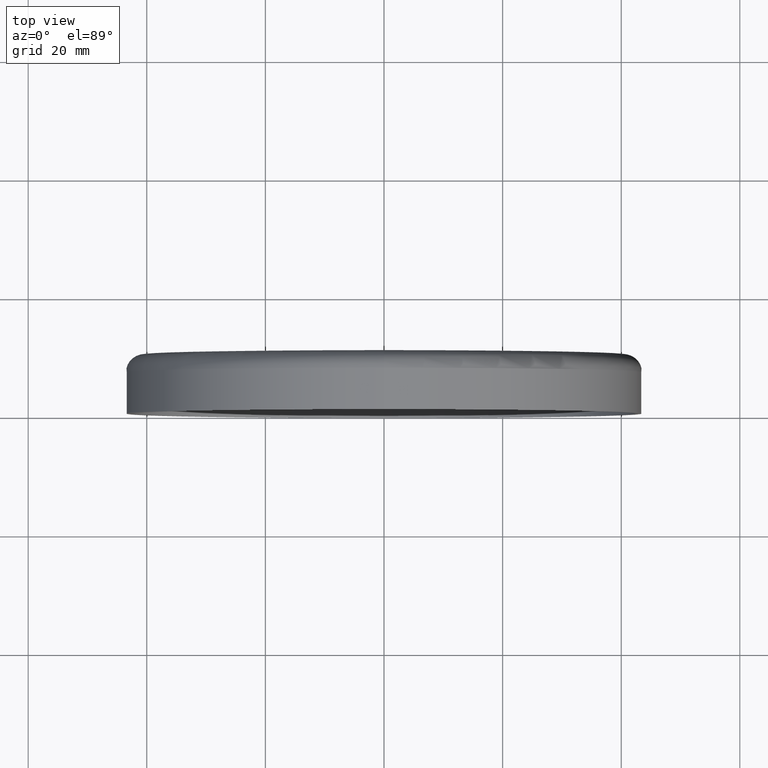
[diagram: clean part render]
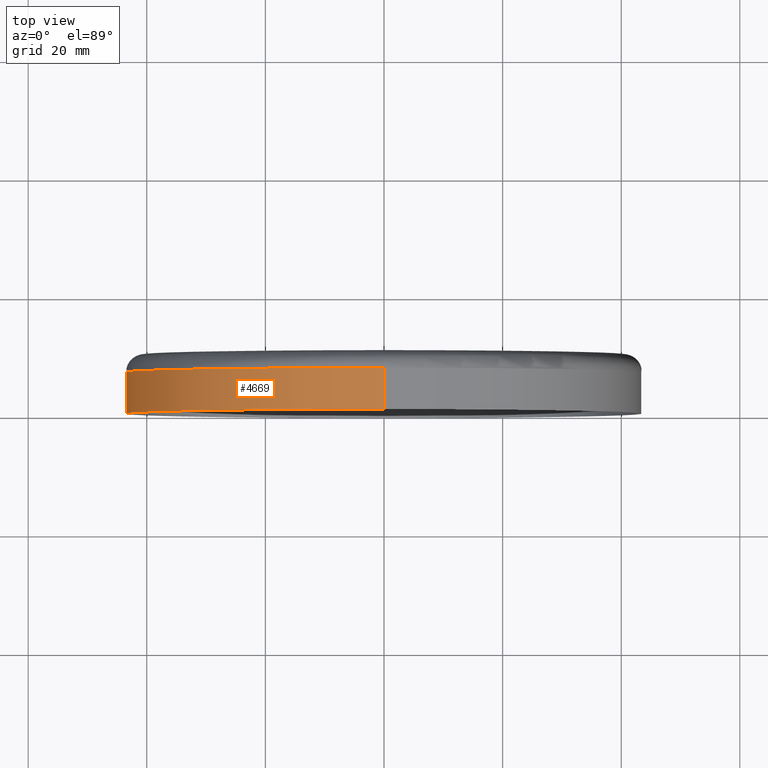
[diagram: same view with one face highlighted and labeled with its STEP entity id]
A machine part, top view. The second image highlights one B-rep face of the part: STEP entity #4669.
In plain terms, the highlighted cylindrical surface (partial cylindrical patch) has radius 43.5 mm, axis along (-0, -1, -0).
Its self-contained STEP definition (entity closure, byte-faithful):
#400 = DIRECTION ( 'NONE',  ( -0.000000000000000000, -1.000000000000000000, -0.000000000000000000 ) ) ;
#1360 = AXIS2_PLACEMENT_3D ( 'NONE', #6174, #400, #14092 ) ;
#1552 = ORIENTED_EDGE ( 'NONE', *, *, #8739, .T. ) ;
#1735 = VECTOR ( 'NONE', #2320, 1000.000000000000000 ) ;
#1845 = CARTESIAN_POINT ( 'NONE',  ( 0.000000000000000000, 0.000000000000000000, 0.000000000000000000 ) ) ;
#1857 = LINE ( 'NONE', #2438, #10575 ) ;
#2033 = CARTESIAN_POINT ( 'NONE',  ( 5.327213576290986044E-15, 0.000000000000000000, 43.50000000000000000 ) ) ;
#2320 = DIRECTION ( 'NONE',  ( -0.000000000000000000, -1.000000000000000000, -0.000000000000000000 ) ) ;
#2391 = AXIS2_PLACEMENT_3D ( 'NONE', #1845, #9799, #10704 ) ;
#2438 = CARTESIAN_POINT ( 'NONE',  ( 0.000000000000000000, 0.000000000000000000, -43.50000000000000000 ) ) ;
#2611 = CARTESIAN_POINT ( 'NONE',  ( 0.000000000000000000, 0.000000000000000000, -43.50000000000000000 ) ) ;
#2675 = EDGE_CURVE ( 'NONE', #10165, #13798, #9400, .T. ) ;
#4669 = ADVANCED_FACE ( 'NONE', ( #5140 ), #4754, .T. ) ;
#4754 = CYLINDRICAL_SURFACE ( 'NONE', #1360, 43.50000000000000000 ) ;
#5138 = ORIENTED_EDGE ( 'NONE', *, *, #2675, .F. ) ;
#5140 = FACE_OUTER_BOUND ( 'NONE', #5567, .T. ) ;
#5567 = EDGE_LOOP ( 'NONE', ( #8248, #7191, #1552, #5138 ) ) ;
#5691 = CARTESIAN_POINT ( 'NONE',  ( 0.000000000000000000, 6.999999999999999112, 0.000000000000000000 ) ) ;
#5751 = EDGE_CURVE ( 'NONE', #12641, #10165, #6362, .T. ) ;
#6174 = CARTESIAN_POINT ( 'NONE',  ( 0.000000000000000000, 0.000000000000000000, 0.000000000000000000 ) ) ;
#6362 = LINE ( 'NONE', #10096, #1735 ) ;
#7191 = ORIENTED_EDGE ( 'NONE', *, *, #13120, .T. ) ;
#7297 = VERTEX_POINT ( 'NONE', #13535 ) ;
#8248 = ORIENTED_EDGE ( 'NONE', *, *, #5751, .F. ) ;
#8739 = EDGE_CURVE ( 'NONE', #7297, #13798, #1857, .T. ) ;
#9400 = CIRCLE ( 'NONE', #2391, 43.50000000000000000 ) ;
#9799 = DIRECTION ( 'NONE',  ( -0.000000000000000000, -1.000000000000000000, -0.000000000000000000 ) ) ;
#9982 = AXIS2_PLACEMENT_3D ( 'NONE', #5691, #13561, #10103 ) ;
#10096 = CARTESIAN_POINT ( 'NONE',  ( 5.327213576290986044E-15, 0.000000000000000000, 43.50000000000000000 ) ) ;
#10103 = DIRECTION ( 'NONE',  ( 0.000000000000000000, 0.000000000000000000, -1.000000000000000000 ) ) ;
#10165 = VERTEX_POINT ( 'NONE', #2033 ) ;
#10575 = VECTOR ( 'NONE', #11534, 1000.000000000000000 ) ;
#10704 = DIRECTION ( 'NONE',  ( 0.000000000000000000, 0.000000000000000000, -1.000000000000000000 ) ) ;
#11197 = CIRCLE ( 'NONE', #9982, 43.50000000000000000 ) ;
#11534 = DIRECTION ( 'NONE',  ( -0.000000000000000000, -1.000000000000000000, -0.000000000000000000 ) ) ;
#11968 = CARTESIAN_POINT ( 'NONE',  ( 5.327213576290985256E-15, 6.999999999999999112, 43.50000000000000000 ) ) ;
#12641 = VERTEX_POINT ( 'NONE', #11968 ) ;
#13120 = EDGE_CURVE ( 'NONE', #12641, #7297, #11197, .T. ) ;
#13535 = CARTESIAN_POINT ( 'NONE',  ( 0.000000000000000000, 6.999999999999999112, -43.50000000000000000 ) ) ;
#13561 = DIRECTION ( 'NONE',  ( -0.000000000000000000, -1.000000000000000000, -0.000000000000000000 ) ) ;
#13798 = VERTEX_POINT ( 'NONE', #2611 ) ;
#14092 = DIRECTION ( 'NONE',  ( 0.000000000000000000, 0.000000000000000000, -1.000000000000000000 ) ) ;